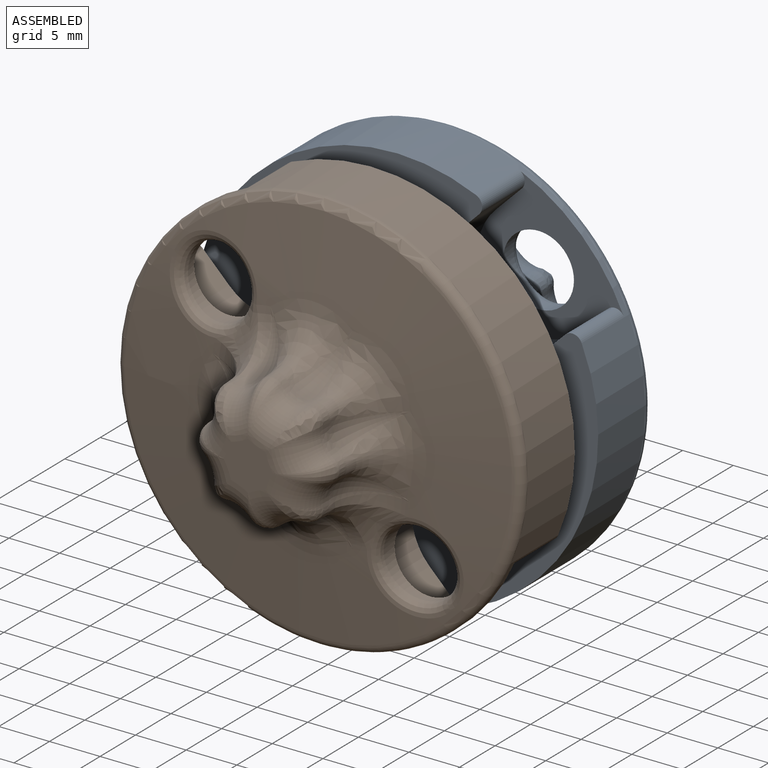
[diagram: assembled view]
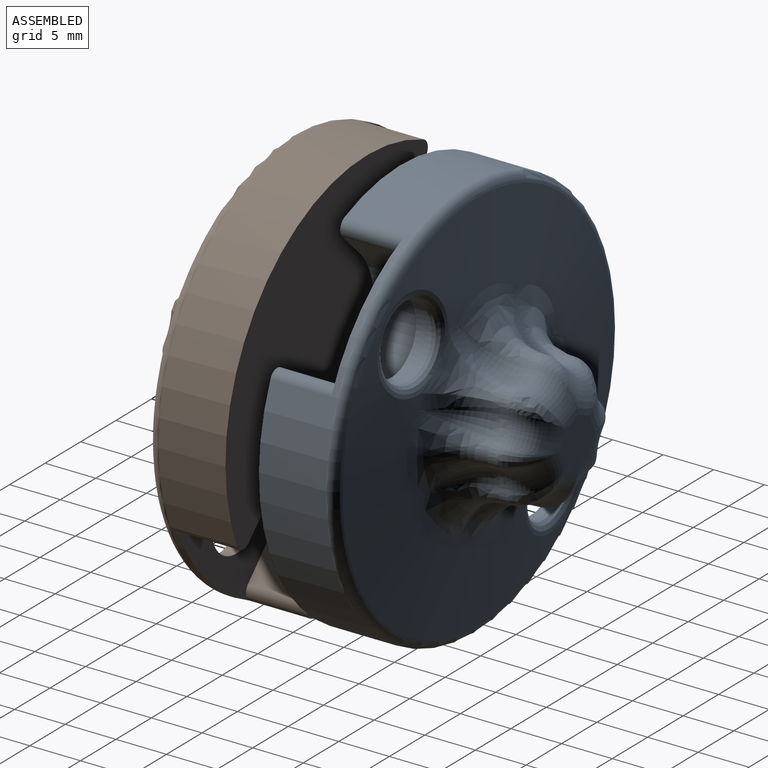
[diagram: assembled view, second angle]
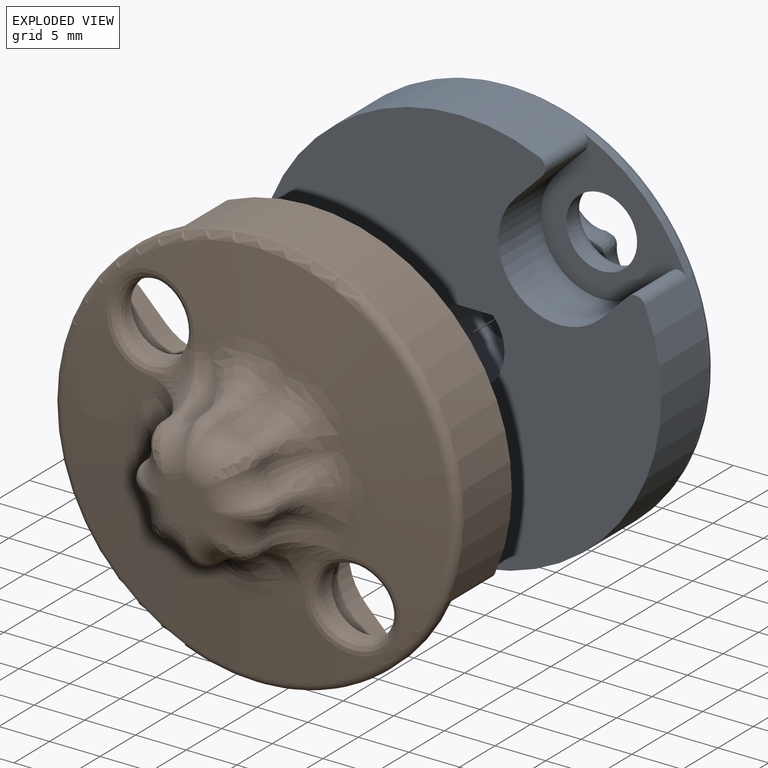
[diagram: exploded view]
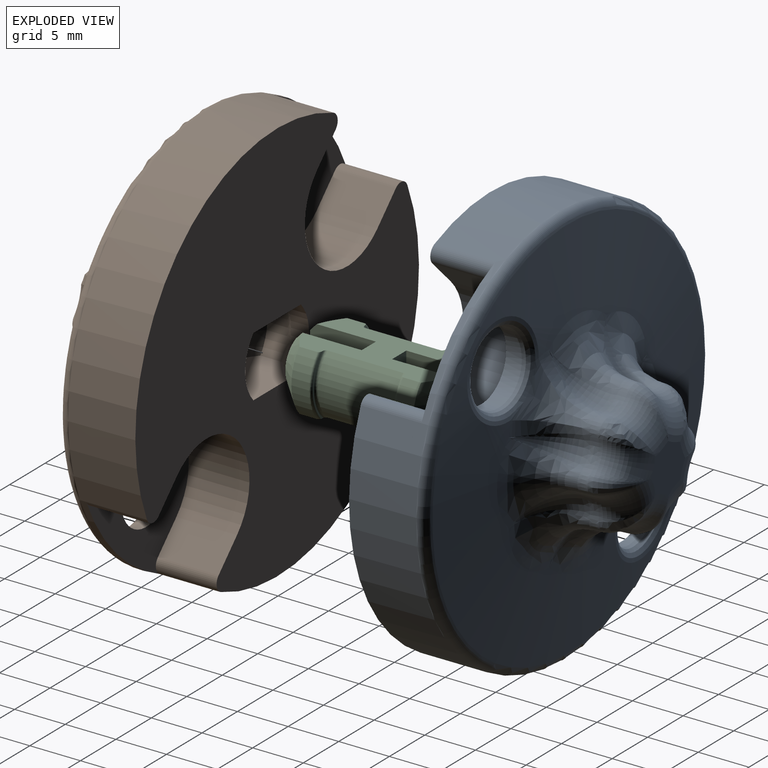
[diagram: exploded view, second angle]
ASSEMBLY  parts=3 mates=2
PART A: 85 faces, bbox 43.5x17.7x43.5 mm
  f0: bspline ~4.73x4.72mm, area 8.2mm2, adj f30,f39,f69,f71
  f1: bspline ~4.73x4.72mm, area 8.3mm2, adj f31,f47,f78,f80
  f2: plane 40x40mm, normal (0,1,0), area 955.3mm2, adj f3,f6,f7,f13,f14,f18,f19,f20
  f3: cylinder r=20mm len=40mm, axis (0,-1,0), area 652.9mm2, adj f2,f15,f21,f25,f26,f27,f28,f29
  f4: sphere r=134.08mm, area 657.4mm2, adj f15,f30,f31,f65,f68,f69,f72,f73
  f5: cylinder r=5mm len=6mm, axis (0,-1,0), area 12.6mm2, adj f8,f9,f13,f14
  f6: cylinder r=4.5mm len=6mm, axis (0,-1,0), area 11.8mm2, adj f2,f10,f13,f14
  f7: cylinder r=4.5mm len=6mm, axis (0,-1,0), area 11.8mm2, adj f2,f9,f13,f14
  f8: cone r=2.71mm half-angle=45deg, axis (0,1,0), area 46.9mm2, adj f5,f11,f12,f13,f14
  f9: torus R=4.25mm, axis (0,-1,0), area 6.1mm2, adj f5,f7,f13,f14
  f10: torus R=4.25mm, axis (0,-1,0), area 6.1mm2, adj f6,f11,f13,f14
  f11: cylinder r=5mm len=6mm, axis (0,-1,0), area 12.6mm2, adj f8,f10,f13,f14
  f12: plane 5.41x5.41mm, normal (0,1,0), area 23mm2, adj f8
  f13: plane 8.2x6.65mm, normal (1,0,0), area 43.2mm2, adj f2,f5,f6,f7,f8,f9,f10,f11
  f14: plane 8.2x6.65mm, normal (-1,0,0), area 43.2mm2, adj f2,f5,f6,f7,f8,f9,f10,f11
  f15: torus R=19mm, axis (0,1,0), area 176.6mm2, adj f3,f4
  f16: cylinder r=3.5mm len=7mm, axis (0,1,0), area 26mm2, adj f21,f31
  f17: cylinder r=3.5mm len=7mm, axis (0,1,0), area 26.1mm2, adj f25,f30
  f18: plane 6x2.59mm, normal (0.71,0,-0.71), area 22mm2, adj f2,f20,f21,f26
  f19: plane 6x2.59mm, normal (-0.71,0,0.71), area 22mm2, adj f2,f20,f21,f27
  f20: cylinder r=6mm len=10.24mm, axis (0,1,0), area 113.1mm2, adj f2,f18,f19,f21
  f21: plane 14.46x14.46mm, normal (0,1,0), area 87.4mm2, adj f3,f16,f18,f19,f20,f26,f27
  f22: plane 6x2.59mm, normal (-0.71,0,0.71), area 22mm2, adj f2,f24,f25,f28
  f23: plane 6x2.59mm, normal (0.71,0,-0.71), area 22mm2, adj f2,f24,f25,f29
  f24: cylinder r=6mm len=10.24mm, axis (0,1,0), area 113.1mm2, adj f2,f22,f23,f25
  f25: plane 14.46x14.46mm, normal (0,1,0), area 87.4mm2, adj f3,f17,f22,f23,f24,f28,f29
  f26: cylinder r=1mm len=6mm, axis (0,-1,0), area 11.7mm2, adj f2,f3,f18,f21
  f27: cylinder r=1mm len=6mm, axis (0,-1,0), area 11.7mm2, adj f2,f3,f19,f21
  f28: cylinder r=1mm len=6mm, axis (0,-1,0), area 11.7mm2, adj f2,f3,f22,f25
  f29: cylinder r=1mm len=6mm, axis (0,-1,0), area 11.7mm2, adj f2,f3,f23,f25
  f30: bspline ~9.08x9.08mm, area 37.9mm2, adj f0,f4,f17,f71
  f31: bspline ~9.08x9.08mm, area 38.3mm2, adj f1,f4,f16,f78
  f32: cone r=2.36mm half-angle=3deg, axis (0,-1,0), area 2.5mm2, adj f33,f47,f60,f82
  f33: cone r=1.55mm half-angle=3deg, axis (0,1,0), area 2mm2, adj f32,f34,f58,f84
  f34: cone r=2.36mm half-angle=3deg, axis (0,-1,0), area 2.5mm2, adj f33,f35,f56,f83
  f35: cone r=1.55mm half-angle=3deg, axis (0,1,0), area 2mm2, adj f34,f36,f54,f81
  f36: cone r=2.36mm half-angle=3deg, axis (0,-1,0), area 2.5mm2, adj f35,f37,f52,f79
  f37: cone r=1.55mm half-angle=3deg, axis (0,1,0), area 2mm2, adj f36,f38,f50,f77
  f38: cone r=2.36mm half-angle=3deg, axis (0,-1,0), area 2.5mm2, adj f37,f39,f49,f75
  f39: cone r=1.55mm half-angle=3deg, axis (0,1,0), area 2.3mm2, adj f0,f38,f40,f51,f69,f71,f73
  f40: cone r=2.36mm half-angle=3deg, axis (0,-1,0), area 2.5mm2, adj f39,f41,f53,f67
  f41: cone r=1.55mm half-angle=3deg, axis (0,1,0), area 2mm2, adj f40,f42,f55,f65
  f42: cone r=2.36mm half-angle=3deg, axis (0,-1,0), area 2.5mm2, adj f41,f43,f57,f66
  f43: cone r=1.55mm half-angle=3deg, axis (0,1,0), area 2mm2, adj f42,f44,f59,f68
  f44: cone r=2.36mm half-angle=3deg, axis (0,-1,0), area 2.5mm2, adj f43,f45,f61,f70
  f45: cone r=1.55mm half-angle=3deg, axis (0,1,0), area 2mm2, adj f44,f46,f63,f72
  f46: cone r=2.36mm half-angle=3deg, axis (0,-1,0), area 2.5mm2, adj f45,f47,f64,f74
  f47: cone r=1.55mm half-angle=3deg, axis (0,1,0), area 2.3mm2, adj f1,f32,f46,f62,f76,f78,f80
  f48: plane 4.83x4.83mm, normal (0,-1,0), area 15.8mm2, adj f49,f52,f53,f56,f57,f60,f61,f64
  f49: torus R=6.21mm, axis (0,-1,0), area 14mm2, adj f38,f48,f50,f51
  f50: bspline ~4.27x3.32mm, area 4.6mm2, adj f37,f49,f52
  f51: bspline ~3.38x3.37mm, area 4.6mm2, adj f39,f49,f53
  f52: torus R=6.21mm, axis (0,-1,0), area 14mm2, adj f36,f48,f50,f54
  f53: torus R=6.21mm, axis (0,-1,0), area 14mm2, adj f40,f48,f51,f55
  f54: bspline ~3.38x3.37mm, area 4.6mm2, adj f35,f52,f56
  f55: bspline ~4.27x3.32mm, area 4.6mm2, adj f41,f53,f57
  f56: torus R=6.21mm, axis (0,-1,0), area 14mm2, adj f34,f48,f54,f58
  f57: torus R=6.21mm, axis (0,-1,0), area 14mm2, adj f42,f48,f55,f59
  f58: bspline ~4.27x3.32mm, area 4.6mm2, adj f33,f56,f60
  f59: bspline ~3.38x3.37mm, area 4.6mm2, adj f43,f57,f61
  f60: torus R=6.21mm, axis (0,-1,0), area 14mm2, adj f32,f48,f58,f62
  f61: torus R=6.21mm, axis (0,-1,0), area 14mm2, adj f44,f48,f59,f63
  f62: bspline ~3.38x3.37mm, area 4.6mm2, adj f47,f60,f64
  f63: bspline ~4.27x3.32mm, area 4.6mm2, adj f45,f61,f64
  f64: torus R=6.21mm, axis (0,-1,0), area 14mm2, adj f46,f48,f62,f63
  f65: bspline ~11.15x5.42mm, area 36.1mm2, adj f4,f41,f66,f67
  f66: bspline ~4.76x4.68mm, area 11.6mm2, adj f42,f65,f68
  f67: bspline ~4.76x4.69mm, area 7.9mm2, adj f40,f65,f69
  f68: bspline ~8.35x8.35mm, area 36.1mm2, adj f4,f43,f66,f70
  f69: bspline ~4.86x4.73mm, area 7.1mm2, adj f0,f4,f39,f67
  f70: bspline ~4.76x4.68mm, area 11.8mm2, adj f44,f68,f72
  f71: bspline ~4.73x4.72mm, area 8.2mm2, adj f0,f30,f39,f73
  f72: bspline ~11.15x5.42mm, area 36.1mm2, adj f4,f45,f70,f74
  f73: bspline ~4.86x4.73mm, area 7.1mm2, adj f4,f39,f71,f75
  f74: bspline ~4.76x4.68mm, area 11.2mm2, adj f46,f72,f76
  f75: bspline ~4.76x4.69mm, area 8mm2, adj f38,f73,f77
  f76: bspline ~4.86x4.73mm, area 7.1mm2, adj f4,f47,f74,f78
  f77: bspline ~11.15x5.42mm, area 36.1mm2, adj f4,f37,f75,f79
  f78: bspline ~4.73x4.72mm, area 8.2mm2, adj f1,f31,f47,f76
  f79: bspline ~4.76x4.69mm, area 8mm2, adj f36,f77,f81
  f80: bspline ~4.82x4.72mm, area 7.1mm2, adj f1,f4,f47,f82
  f81: bspline ~8.35x8.35mm, area 36.1mm2, adj f4,f35,f79,f83
  f82: bspline ~4.76x4.68mm, area 11.8mm2, adj f32,f80,f84
  f83: bspline ~4.76x4.69mm, area 8mm2, adj f34,f81,f84
  f84: bspline ~11.15x5.42mm, area 36.1mm2, adj f4,f33,f82,f83
PART B: same geometry as A
PART C: 38 faces, bbox 9.8x16.1x8.6 mm
  f0: torus R=4.25mm, axis (0,-1,0), area 2.6mm2, adj f1,f5,f19,f20
  f1: torus R=4.25mm, axis (0,-1,0), area 2.6mm2, adj f0,f2,f19,f20
  f2: cylinder r=4.5mm len=6mm, axis (0,-1,0), area 11.5mm2, adj f1,f3,f19,f20
  f3: cone r=2.5mm half-angle=45deg, axis (0,1,0), area 19.6mm2, adj f2,f11,f14,f18,f19,f20
  f4: plane 6x3mm, normal (0,-1,0), area 13.5mm2, adj f11,f12,f13,f15,f17,f18,f19,f20
  f5: cylinder r=4mm len=7.5mm, axis (0,-1,0), area 50.9mm2, adj f0,f19,f20,f21
  f6: cylinder r=4mm len=7.5mm, axis (0,-1,0), area 50.9mm2, adj f7,f19,f20,f26
  f7: torus R=4.25mm, axis (0,-1,0), area 2.6mm2, adj f6,f8,f19,f20
  f8: torus R=4.25mm, axis (0,-1,0), area 2.6mm2, adj f7,f9,f19,f20
  f9: cylinder r=4.5mm len=6mm, axis (0,-1,0), area 11.5mm2, adj f8,f10,f19,f20
  f10: cone r=2.5mm half-angle=45deg, axis (0,1,0), area 19.6mm2, adj f9,f12,f16,f17,f19,f20
  f11: plane 6.53x1.91mm, normal (-1,0,0), area 12mm2, adj f3,f4,f13,f14,f20
  f12: plane 6.53x1.91mm, normal (1,0,0), area 12mm2, adj f4,f10,f15,f16,f20
  f13: cylinder r=1.5mm len=6.5mm, axis (0,-1,0), area 16.4mm2, adj f4,f11,f14,f18
  f14: plane 4.58x1.5mm, normal (0,-1,0), area 4.2mm2, adj f3,f11,f13,f18
  f15: cylinder r=1.5mm len=6.5mm, axis (0,-1,0), area 16.4mm2, adj f4,f12,f16,f17
  f16: plane 4.58x1.5mm, normal (0,-1,0), area 4.2mm2, adj f10,f12,f15,f17
  f17: plane 6.53x1.91mm, normal (1,0,0), area 12mm2, adj f4,f10,f15,f16,f19
  f18: plane 6.53x1.91mm, normal (-1,0,0), area 12mm2, adj f3,f4,f13,f14,f19
  f19: plane 14.77x6.8mm, normal (0,0,1), area 58.3mm2, adj f0,f1,f2,f3,f4,f5,f6,f7
  f20: plane 14.77x6.8mm, normal (0,0,-1), area 58.3mm2, adj f0,f1,f2,f3,f4,f5,f6,f7
  f21: torus R=4.25mm, axis (0,1,0), area 2.6mm2, adj f5,f19,f20,f22
  f22: torus R=4.25mm, axis (0,1,0), area 2.6mm2, adj f19,f20,f21,f23
  f23: cylinder r=4.5mm len=6mm, axis (0,1,0), area 11.5mm2, adj f19,f20,f22,f24
  f24: cone r=2.5mm half-angle=45deg, axis (0,-1,0), area 19.6mm2, adj f19,f20,f23,f30,f33,f37
  f25: plane 6x3mm, normal (0,1,0), area 13.5mm2, adj f19,f20,f30,f31,f32,f34,f36,f37
  f26: torus R=4.25mm, axis (0,1,0), area 2.6mm2, adj f6,f19,f20,f27
  f27: torus R=4.25mm, axis (0,1,0), area 2.6mm2, adj f19,f20,f26,f28
  f28: cylinder r=4.5mm len=6mm, axis (0,1,0), area 11.5mm2, adj f19,f20,f27,f29
  f29: cone r=2.5mm half-angle=45deg, axis (0,-1,0), area 19.6mm2, adj f19,f20,f28,f31,f35,f36
  f30: plane 6.53x1.91mm, normal (-1,0,0), area 12mm2, adj f20,f24,f25,f32,f33
  f31: plane 6.53x1.91mm, normal (1,0,0), area 12mm2, adj f20,f25,f29,f34,f35
  f32: cylinder r=1.5mm len=6.5mm, axis (0,1,0), area 16.4mm2, adj f25,f30,f33,f37
  f33: plane 4.58x1.5mm, normal (0,1,0), area 4.2mm2, adj f24,f30,f32,f37
  f34: cylinder r=1.5mm len=6.5mm, axis (0,1,0), area 16.4mm2, adj f25,f31,f35,f36
  f35: plane 4.58x1.5mm, normal (0,1,0), area 4.2mm2, adj f29,f31,f34,f36
  f36: plane 6.53x1.91mm, normal (1,0,0), area 12mm2, adj f19,f25,f29,f34,f35
  f37: plane 6.53x1.91mm, normal (-1,0,0), area 12mm2, adj f19,f24,f25,f32,f33
PLACE A rot(axis=(0.71,0,-0.71),180deg) t=(120.36,-0.48,120.36)mm
PLACE B rot(axis=(0,-1,0),90deg) t=(120.36,-0.28,92.77)mm
PLACE C rot(axis=(-0.03,-1,0),0deg) t=(13.79,-0.38,-63.52)mm
MATE fastened A.f3 <-> C.f0  axis (0,-1,0) through (13.79,8.02,106.56)mm
MATE fastened B.f3 <-> C.f0  axis (0,1,0) through (13.79,-8.78,106.56)mm
